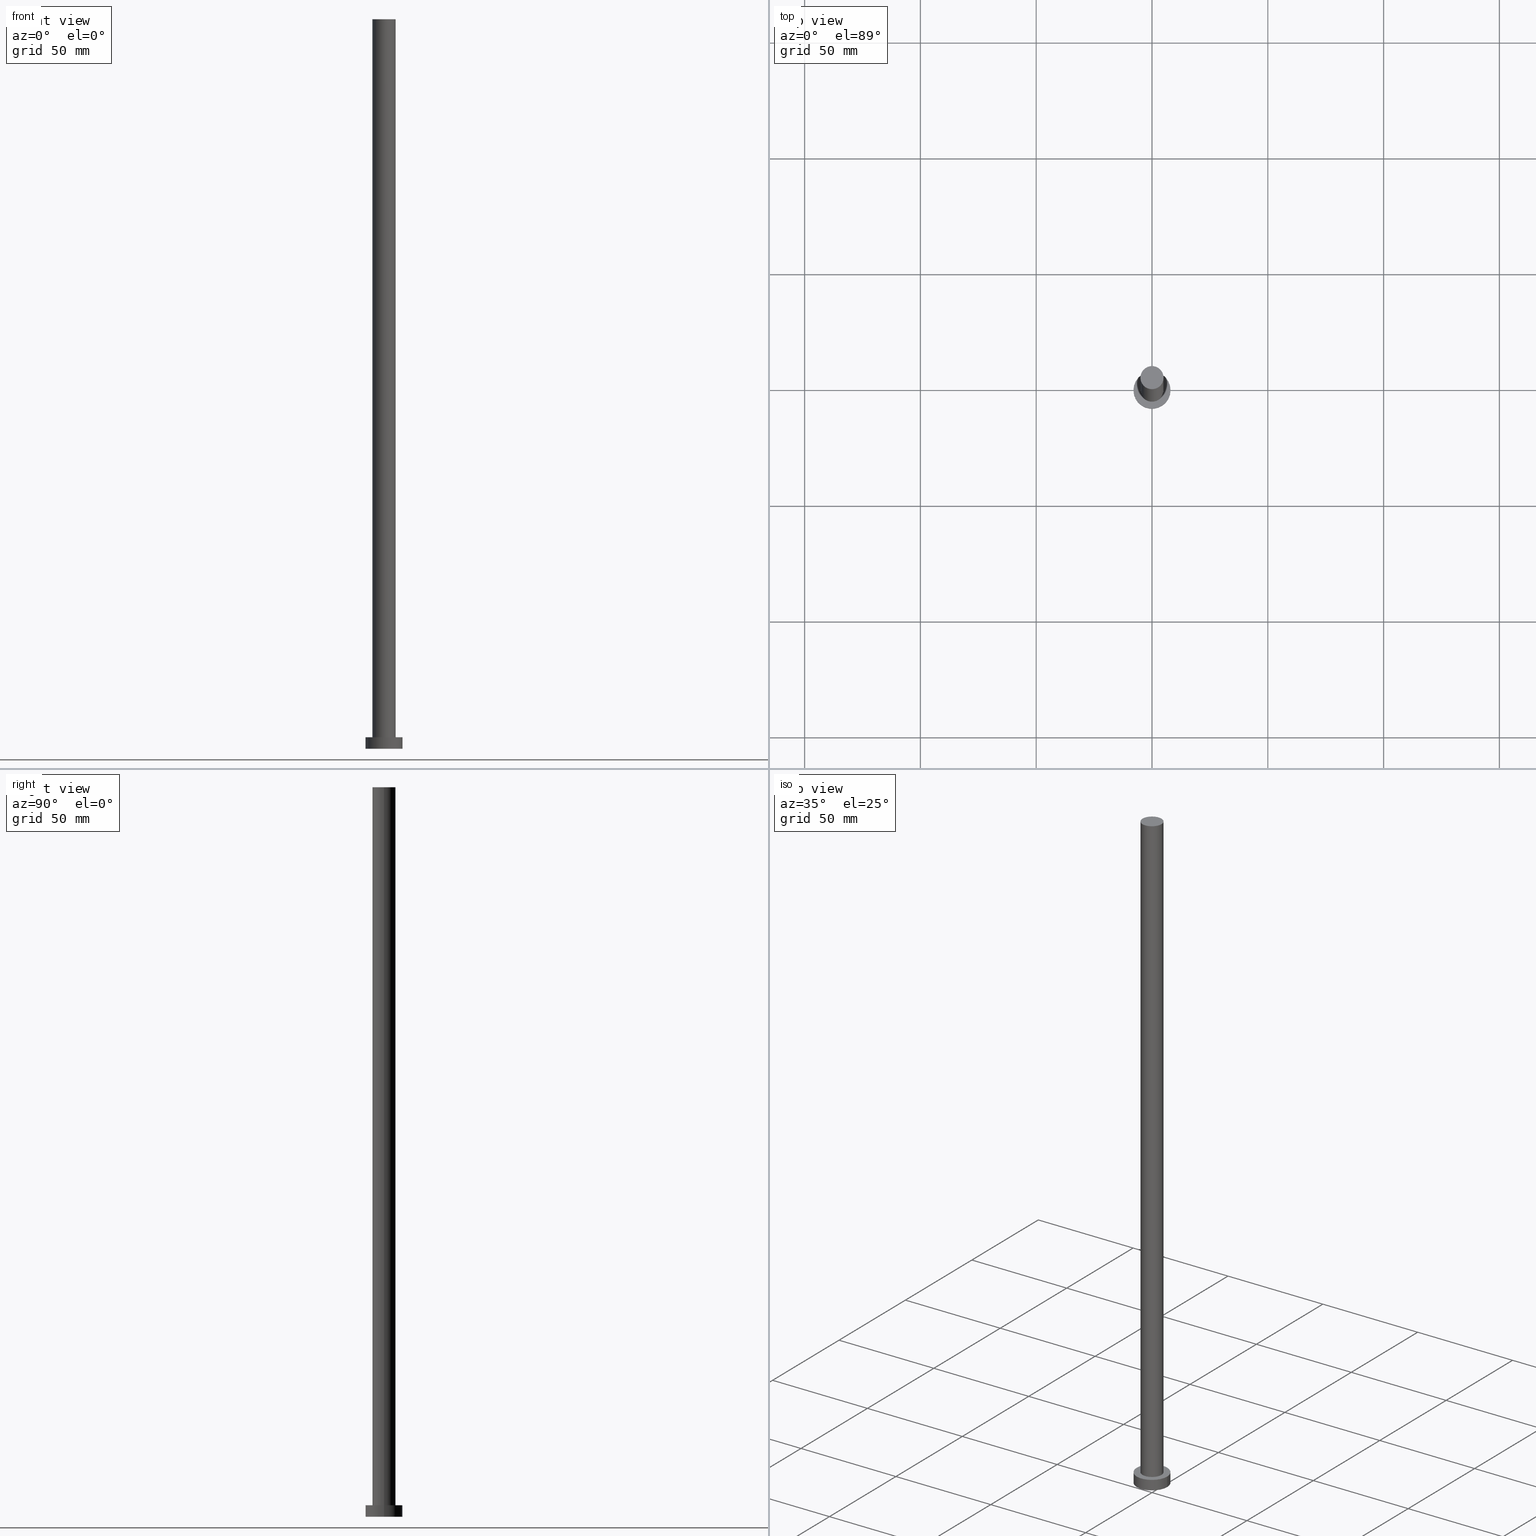
[diagram: canonical four-view strip — front | top / right | iso, engineering-drawing reading convention]
A machine part, canonical four-view strip (front | top / right | iso — engineering-drawing reading convention). The complete STEP part file that produces these views, byte-faithful:
ISO-10303-21;
HEADER;
FILE_DESCRIPTION (( 'STEP AP203' ),
    '1' );
FILE_NAME ('a285.STEP',
    '2023-02-12T11:00:26',
    ( '' ),
    ( '' ),
    'SwSTEP 2.0',
    'SolidWorks 2019',
    '' );
FILE_SCHEMA (( 'CONFIG_CONTROL_DESIGN' ));
ENDSEC;

DATA;
#1 = CARTESIAN_POINT ( 'NONE',  ( 0.000000000000000000, 0.000000000000000000, 5.000000000000000000 ) ) ;
#2 = COORDINATED_UNIVERSAL_TIME_OFFSET ( 1, 0, .AHEAD. ) ;
#3 = DIRECTION ( 'NONE',  ( 0.000000000000000000, 0.000000000000000000, 1.000000000000000000 ) ) ;
#4 = CARTESIAN_POINT ( 'NONE',  ( 0.000000000000000000, 0.000000000000000000, 5.000000000000000000 ) ) ;
#5 = CARTESIAN_POINT ( 'NONE',  ( 0.000000000000000000, 0.000000000000000000, 315.0000000000000000 ) ) ;
#6 = EDGE_LOOP ( 'NONE', ( #90, #85, #34, #241 ) ) ;
#7 = ORIENTED_EDGE ( 'NONE', *, *, #18, .F. ) ;
#8 =( GEOMETRIC_REPRESENTATION_CONTEXT ( 3 ) GLOBAL_UNCERTAINTY_ASSIGNED_CONTEXT ( ( #141 ) ) GLOBAL_UNIT_ASSIGNED_CONTEXT ( ( #164, #214, #109 ) ) REPRESENTATION_CONTEXT ( 'NONE', 'WORKASPACE' ) );
#9 = PLANE ( 'NONE',  #158 ) ;
#10 = PERSON_AND_ORGANIZATION ( #235, #80 ) ;
#11 = AXIS2_PLACEMENT_3D ( 'NONE', #1, #52, #126 ) ;
#12 = PERSON_AND_ORGANIZATION ( #235, #80 ) ;
#13 = PLANE ( 'NONE',  #19 ) ;
#14 = ADVANCED_FACE ( 'NONE', ( #68 ), #142, .T. ) ;
#15 = AXIS2_PLACEMENT_3D ( 'NONE', #228, #59, #21 ) ;
#16 = APPROVAL_STATUS ( 'not_yet_approved' ) ;
#17 = ORIENTED_EDGE ( 'NONE', *, *, #248, .T. ) ;
#18 = EDGE_CURVE ( 'NONE', #28, #198, #67, .T. ) ;
#19 = AXIS2_PLACEMENT_3D ( 'NONE', #138, #222, #177 ) ;
#20 = EDGE_LOOP ( 'NONE', ( #33, #73 ) ) ;
#21 = DIRECTION ( 'NONE',  ( -1.000000000000000000, 0.000000000000000000, 0.000000000000000000 ) ) ;
#22 = CARTESIAN_POINT ( 'NONE',  ( 5.000000000000000000, 6.123233995736766282E-16, 315.0000000000000000 ) ) ;
#23 = EDGE_CURVE ( 'NONE', #174, #198, #212, .T. ) ;
#24 = LOCAL_TIME ( 12, 0, 26.00000000000000000, #2 ) ;
#25 = DIRECTION ( 'NONE',  ( -1.000000000000000000, 0.000000000000000000, 0.000000000000000000 ) ) ;
#26 = APPROVAL_DATE_TIME ( #42, #95 ) ;
#27 = ORIENTED_EDGE ( 'NONE', *, *, #104, .T. ) ;
#28 = VERTEX_POINT ( 'NONE', #50 ) ;
#29 = PERSON_AND_ORGANIZATION_ROLE ( 'creator' ) ;
#30 = LOCAL_TIME ( 12, 0, 26.00000000000000000, #135 ) ;
#31 = EDGE_CURVE ( 'NONE', #174, #46, #189, .T. ) ;
#32 = CARTESIAN_POINT ( 'NONE',  ( -8.000000000000000000, 0.000000000000000000, 5.000000000000000000 ) ) ;
#33 = ORIENTED_EDGE ( 'NONE', *, *, #219, .F. ) ;
#34 = ORIENTED_EDGE ( 'NONE', *, *, #23, .T. ) ;
#35 = VECTOR ( 'NONE', #75, 1000.000000000000000 ) ;
#36 = CARTESIAN_POINT ( 'NONE',  ( 0.000000000000000000, 0.000000000000000000, 315.0000000000000000 ) ) ;
#37 = FACE_OUTER_BOUND ( 'NONE', #121, .T. ) ;
#38 = DIRECTION ( 'NONE',  ( 0.000000000000000000, 0.000000000000000000, 1.000000000000000000 ) ) ;
#39 = VECTOR ( 'NONE', #61, 1000.000000000000000 ) ;
#40 = VERTEX_POINT ( 'NONE', #149 ) ;
#41 = ADVANCED_FACE ( 'NONE', ( #218, #88 ), #13, .T. ) ;
#42 = DATE_AND_TIME ( #209, #30 ) ;
#43 = DIRECTION ( 'NONE',  ( 1.000000000000000000, 0.000000000000000000, -0.000000000000000000 ) ) ;
#44 = AXIS2_PLACEMENT_3D ( 'NONE', #229, #38, #206 ) ;
#45 = APPROVAL ( #16, 'NEUR�EN�' ) ;
#46 = VERTEX_POINT ( 'NONE', #173 ) ;
#47 = DIRECTION ( 'NONE',  ( 1.000000000000000000, 0.000000000000000000, 0.000000000000000000 ) ) ;
#48 = APPROVAL_DATE_TIME ( #127, #58 ) ;
#49 = CC_DESIGN_PERSON_AND_ORGANIZATION_ASSIGNMENT ( #55, #239, ( #230 ) ) ;
#50 = CARTESIAN_POINT ( 'NONE',  ( 8.000000000000000000, 9.797174393178825657E-16, 0.000000000000000000 ) ) ;
#51 = PERSON_AND_ORGANIZATION_ROLE ( 'creator' ) ;
#52 = DIRECTION ( 'NONE',  ( 0.000000000000000000, 0.000000000000000000, 1.000000000000000000 ) ) ;
#53 = CALENDAR_DATE ( 2023, 12, 2 ) ;
#54 = LINE ( 'NONE', #147, #35 ) ;
#55 = PERSON_AND_ORGANIZATION ( #235, #80 ) ;
#56 = ORIENTED_EDGE ( 'NONE', *, *, #23, .F. ) ;
#57 = FACE_OUTER_BOUND ( 'NONE', #159, .T. ) ;
#58 = APPROVAL ( #169, 'NEUR�EN�' ) ;
#59 = DIRECTION ( 'NONE',  ( -0.000000000000000000, -0.000000000000000000, -1.000000000000000000 ) ) ;
#60 = LOCAL_TIME ( 12, 0, 26.00000000000000000, #94 ) ;
#61 = DIRECTION ( 'NONE',  ( -0.000000000000000000, -0.000000000000000000, -1.000000000000000000 ) ) ;
#62 = ORIENTED_EDGE ( 'NONE', *, *, #219, .T. ) ;
#63 = DIRECTION ( 'NONE',  ( 1.000000000000000000, 0.000000000000000000, -0.000000000000000000 ) ) ;
#64 = EDGE_CURVE ( 'NONE', #152, #183, #98, .T. ) ;
#65 = AXIS2_PLACEMENT_3D ( 'NONE', #4, #133, #81 ) ;
#66 = APPROVAL_ROLE ( '' ) ;
#67 = CIRCLE ( 'NONE', #251, 8.000000000000000000 ) ;
#68 = FACE_OUTER_BOUND ( 'NONE', #6, .T. ) ;
#69 = ORIENTED_EDGE ( 'NONE', *, *, #64, .F. ) ;
#70 = PERSON_AND_ORGANIZATION_ROLE ( 'classification_officer' ) ;
#71 = DIRECTION ( 'NONE',  ( -0.000000000000000000, -0.000000000000000000, -1.000000000000000000 ) ) ;
#72 = DATE_TIME_ROLE ( 'classification_date' ) ;
#73 = ORIENTED_EDGE ( 'NONE', *, *, #162, .F. ) ;
#74 = AXIS2_PLACEMENT_3D ( 'NONE', #188, #119, #25 ) ;
#75 = DIRECTION ( 'NONE',  ( -0.000000000000000000, -0.000000000000000000, -1.000000000000000000 ) ) ;
#76 = CARTESIAN_POINT ( 'NONE',  ( 0.000000000000000000, 0.000000000000000000, 0.000000000000000000 ) ) ;
#77 = SECURITY_CLASSIFICATION_LEVEL ( 'unclassified' ) ;
#78 = PERSON_AND_ORGANIZATION ( #235, #80 ) ;
#79 = DATE_AND_TIME ( #120, #185 ) ;
#80 = ORGANIZATION ( 'NEUR�EN�', 'NEUR�EN�', '' ) ;
#81 = DIRECTION ( 'NONE',  ( 1.000000000000000000, 0.000000000000000000, 0.000000000000000000 ) ) ;
#82 = DIRECTION ( 'NONE',  ( 0.000000000000000000, 0.000000000000000000, 1.000000000000000000 ) ) ;
#83 = ORIENTED_EDGE ( 'NONE', *, *, #64, .T. ) ;
#84 = LINE ( 'NONE', #184, #39 ) ;
#85 = ORIENTED_EDGE ( 'NONE', *, *, #31, .F. ) ;
#86 = AXIS2_PLACEMENT_3D ( 'NONE', #93, #3, #179 ) ;
#87 = CARTESIAN_POINT ( 'NONE',  ( 0.000000000000000000, 0.000000000000000000, 0.000000000000000000 ) ) ;
#88 = FACE_OUTER_BOUND ( 'NONE', #172, .T. ) ;
#89 = APPLICATION_PROTOCOL_DEFINITION ( 'international standard', 'config_control_design', 1994, #223 ) ;
#90 = ORIENTED_EDGE ( 'NONE', *, *, #129, .F. ) ;
#91 = AXIS2_PLACEMENT_3D ( 'NONE', #176, #243, #97 ) ;
#92 = PRODUCT ( 'a285', 'a285', '', ( #151 ) ) ;
#93 = CARTESIAN_POINT ( 'NONE',  ( 0.000000000000000000, 0.000000000000000000, 5.000000000000000000 ) ) ;
#94 = COORDINATED_UNIVERSAL_TIME_OFFSET ( 1, 0, .AHEAD. ) ;
#95 = APPROVAL ( #160, 'NEUR�EN�' ) ;
#96 = PERSON_AND_ORGANIZATION ( #235, #80 ) ;
#97 = DIRECTION ( 'NONE',  ( 1.000000000000000000, 0.000000000000000000, 0.000000000000000000 ) ) ;
#98 = CIRCLE ( 'NONE', #240, 5.000000000000000000 ) ;
#99 = ORIENTED_EDGE ( 'NONE', *, *, #215, .F. ) ;
#100 = CC_DESIGN_PERSON_AND_ORGANIZATION_ASSIGNMENT ( #96, #29, ( #230 ) ) ;
#101 = ORIENTED_EDGE ( 'NONE', *, *, #137, .T. ) ;
#102 = DIRECTION ( 'NONE',  ( 0.000000000000000000, 0.000000000000000000, 1.000000000000000000 ) ) ;
#103 = PERSON_AND_ORGANIZATION_ROLE ( 'design_owner' ) ;
#104 = EDGE_CURVE ( 'NONE', #183, #152, #118, .T. ) ;
#105 = VECTOR ( 'NONE', #71, 1000.000000000000000 ) ;
#106 = MANIFOLD_SOLID_BREP ( 'P�idat vysunut�m3', #134 ) ;
#107 = APPROVAL_PERSON_ORGANIZATION ( #143, #58, #237 ) ;
#108 = APPROVAL_DATE_TIME ( #79, #45 ) ;
#109 =( NAMED_UNIT ( * ) SI_UNIT ( $, .STERADIAN. ) SOLID_ANGLE_UNIT ( ) );
#110 = AXIS2_PLACEMENT_3D ( 'NONE', #204, #231, #43 ) ;
#111 = VERTEX_POINT ( 'NONE', #225 ) ;
#112 = DIRECTION ( 'NONE',  ( -0.000000000000000000, -0.000000000000000000, -1.000000000000000000 ) ) ;
#113 = CARTESIAN_POINT ( 'NONE',  ( 0.000000000000000000, 0.000000000000000000, 315.0000000000000000 ) ) ;
#114 = ORIENTED_EDGE ( 'NONE', *, *, #248, .F. ) ;
#115 = CIRCLE ( 'NONE', #166, 8.000000000000000000 ) ;
#116 = FACE_OUTER_BOUND ( 'NONE', #246, .T. ) ;
#117 = DIRECTION ( 'NONE',  ( 0.000000000000000000, 0.000000000000000000, 1.000000000000000000 ) ) ;
#118 = CIRCLE ( 'NONE', #233, 5.000000000000000000 ) ;
#119 = DIRECTION ( 'NONE',  ( -0.000000000000000000, -0.000000000000000000, -1.000000000000000000 ) ) ;
#120 = CALENDAR_DATE ( 2023, 12, 2 ) ;
#121 = EDGE_LOOP ( 'NONE', ( #99, #7 ) ) ;
#122 = COORDINATED_UNIVERSAL_TIME_OFFSET ( 1, 0, .AHEAD. ) ;
#123 = ORIENTED_EDGE ( 'NONE', *, *, #104, .F. ) ;
#124 = PRODUCT_RELATED_PRODUCT_CATEGORY ( 'detail', '', ( #92 ) ) ;
#125 = DATE_AND_TIME ( #171, #24 ) ;
#126 = DIRECTION ( 'NONE',  ( 1.000000000000000000, 0.000000000000000000, 0.000000000000000000 ) ) ;
#127 = DATE_AND_TIME ( #53, #60 ) ;
#128 = ORIENTED_EDGE ( 'NONE', *, *, #18, .T. ) ;
#129 = EDGE_CURVE ( 'NONE', #46, #28, #148, .T. ) ;
#130 = DIRECTION ( 'NONE',  ( 1.000000000000000000, 0.000000000000000000, 0.000000000000000000 ) ) ;
#131 = ORIENTED_EDGE ( 'NONE', *, *, #157, .T. ) ;
#132 = CC_DESIGN_APPROVAL ( #95, ( #201 ) ) ;
#133 = DIRECTION ( 'NONE',  ( 0.000000000000000000, 0.000000000000000000, 1.000000000000000000 ) ) ;
#134 = CLOSED_SHELL ( 'NONE', ( #232, #253, #14, #41, #250, #181, #146 ) ) ;
#135 = COORDINATED_UNIVERSAL_TIME_OFFSET ( 1, 0, .AHEAD. ) ;
#136 = CARTESIAN_POINT ( 'NONE',  ( 0.000000000000000000, 0.000000000000000000, 5.000000000000000000 ) ) ;
#137 = EDGE_CURVE ( 'NONE', #46, #174, #115, .T. ) ;
#138 = CARTESIAN_POINT ( 'NONE',  ( 0.000000000000000000, 0.000000000000000000, 5.000000000000000000 ) ) ;
#139 = CYLINDRICAL_SURFACE ( 'NONE', #74, 8.000000000000000000 ) ;
#140 = APPROVAL_PERSON_ORGANIZATION ( #78, #45, #192 ) ;
#141 = UNCERTAINTY_MEASURE_WITH_UNIT (LENGTH_MEASURE( 1.000000000000000082E-05 ), #164, 'distance_accuracy_value', 'NONE');
#142 = CYLINDRICAL_SURFACE ( 'NONE', #205, 8.000000000000000000 ) ;
#143 = PERSON_AND_ORGANIZATION ( #235, #80 ) ;
#144 = ORIENTED_EDGE ( 'NONE', *, *, #137, .F. ) ;
#145 = CIRCLE ( 'NONE', #65, 5.000000000000000000 ) ;
#146 = ADVANCED_FACE ( 'NONE', ( #116 ), #207, .T. ) ;
#147 = CARTESIAN_POINT ( 'NONE',  ( 5.000000000000000000, 6.123233995736766282E-16, 315.0000000000000000 ) ) ;
#148 = LINE ( 'NONE', #249, #175 ) ;
#149 = CARTESIAN_POINT ( 'NONE',  ( 5.000000000000000000, 6.123233995736766282E-16, 5.000000000000000000 ) ) ;
#150 = CIRCLE ( 'NONE', #86, 5.000000000000000000 ) ;
#151 = MECHANICAL_CONTEXT ( 'NONE', #197, 'mechanical' ) ;
#152 = VERTEX_POINT ( 'NONE', #22 ) ;
#153 = FACE_OUTER_BOUND ( 'NONE', #178, .T. ) ;
#154 = DIRECTION ( 'NONE',  ( 1.000000000000000000, 0.000000000000000000, 0.000000000000000000 ) ) ;
#155 = CARTESIAN_POINT ( 'NONE',  ( -8.000000000000000000, 0.000000000000000000, 0.000000000000000000 ) ) ;
#156 = ORIENTED_EDGE ( 'NONE', *, *, #162, .T. ) ;
#157 = EDGE_CURVE ( 'NONE', #152, #40, #54, .T. ) ;
#158 = AXIS2_PLACEMENT_3D ( 'NONE', #87, #247, #63 ) ;
#159 = EDGE_LOOP ( 'NONE', ( #69, #131, #156, #114 ) ) ;
#160 = APPROVAL_STATUS ( 'not_yet_approved' ) ;
#161 = ORIENTED_EDGE ( 'NONE', *, *, #157, .F. ) ;
#162 = EDGE_CURVE ( 'NONE', #40, #111, #150, .T. ) ;
#163 = CIRCLE ( 'NONE', #91, 8.000000000000000000 ) ;
#164 =( LENGTH_UNIT ( ) NAMED_UNIT ( * ) SI_UNIT ( .MILLI., .METRE. ) );
#165 = ORIENTED_EDGE ( 'NONE', *, *, #31, .T. ) ;
#166 = AXIS2_PLACEMENT_3D ( 'NONE', #136, #117, #245 ) ;
#167 = DIRECTION ( 'NONE',  ( 0.000000000000000000, 0.000000000000000000, 1.000000000000000000 ) ) ;
#168 = PERSON_AND_ORGANIZATION ( #235, #80 ) ;
#169 = APPROVAL_STATUS ( 'not_yet_approved' ) ;
#170 = CC_DESIGN_APPROVAL ( #45, ( #230 ) ) ;
#171 = CALENDAR_DATE ( 2023, 12, 2 ) ;
#172 = EDGE_LOOP ( 'NONE', ( #165, #101 ) ) ;
#173 = CARTESIAN_POINT ( 'NONE',  ( 8.000000000000000000, 9.797174393178825657E-16, 5.000000000000000000 ) ) ;
#174 = VERTEX_POINT ( 'NONE', #32 ) ;
#175 = VECTOR ( 'NONE', #190, 1000.000000000000000 ) ;
#176 = CARTESIAN_POINT ( 'NONE',  ( 0.000000000000000000, 0.000000000000000000, 0.000000000000000000 ) ) ;
#177 = DIRECTION ( 'NONE',  ( 1.000000000000000000, 0.000000000000000000, -0.000000000000000000 ) ) ;
#178 = EDGE_LOOP ( 'NONE', ( #161, #123, #17, #62 ) ) ;
#179 = DIRECTION ( 'NONE',  ( 1.000000000000000000, 0.000000000000000000, 0.000000000000000000 ) ) ;
#180 = ORIENTED_EDGE ( 'NONE', *, *, #129, .T. ) ;
#181 = ADVANCED_FACE ( 'NONE', ( #153 ), #244, .T. ) ;
#182 = DIRECTION ( 'NONE',  ( -1.000000000000000000, 0.000000000000000000, 0.000000000000000000 ) ) ;
#183 = VERTEX_POINT ( 'NONE', #199 ) ;
#184 = CARTESIAN_POINT ( 'NONE',  ( -5.000000000000000000, 0.000000000000000000, 315.0000000000000000 ) ) ;
#185 = LOCAL_TIME ( 12, 0, 26.00000000000000000, #217 ) ;
#186 = ADVANCED_BREP_SHAPE_REPRESENTATION ( 'a285', ( #106, #44 ), #8 ) ;
#187 = CC_DESIGN_DATE_AND_TIME_ASSIGNMENT ( #125, #196, ( #201 ) ) ;
#188 = CARTESIAN_POINT ( 'NONE',  ( 0.000000000000000000, 0.000000000000000000, 5.000000000000000000 ) ) ;
#189 = CIRCLE ( 'NONE', #11, 8.000000000000000000 ) ;
#190 = DIRECTION ( 'NONE',  ( -0.000000000000000000, -0.000000000000000000, -1.000000000000000000 ) ) ;
#191 = DIRECTION ( 'NONE',  ( -1.000000000000000000, 0.000000000000000000, 0.000000000000000000 ) ) ;
#192 = APPROVAL_ROLE ( '' ) ;
#193 = CC_DESIGN_PERSON_AND_ORGANIZATION_ASSIGNMENT ( #195, #51, ( #201 ) ) ;
#194 = APPROVAL_PERSON_ORGANIZATION ( #10, #95, #66 ) ;
#195 = PERSON_AND_ORGANIZATION ( #235, #80 ) ;
#196 = DATE_TIME_ROLE ( 'creation_date' ) ;
#197 = APPLICATION_CONTEXT ( 'configuration controlled 3d designs of mechanical parts and assemblies' ) ;
#198 = VERTEX_POINT ( 'NONE', #155 ) ;
#199 = CARTESIAN_POINT ( 'NONE',  ( -5.000000000000000000, 0.000000000000000000, 315.0000000000000000 ) ) ;
#200 = AXIS2_PLACEMENT_3D ( 'NONE', #36, #112, #182 ) ;
#201 = PRODUCT_DEFINITION ( 'NEZN�M�', '', #230, #252 ) ;
#202 = EDGE_LOOP ( 'NONE', ( #144, #180, #128, #56 ) ) ;
#203 = CYLINDRICAL_SURFACE ( 'NONE', #15, 5.000000000000000000 ) ;
#204 = CARTESIAN_POINT ( 'NONE',  ( 0.000000000000000000, 0.000000000000000000, 315.0000000000000000 ) ) ;
#205 = AXIS2_PLACEMENT_3D ( 'NONE', #234, #211, #191 ) ;
#206 = DIRECTION ( 'NONE',  ( 1.000000000000000000, 0.000000000000000000, 0.000000000000000000 ) ) ;
#207 = PLANE ( 'NONE',  #110 ) ;
#208 = CC_DESIGN_DATE_AND_TIME_ASSIGNMENT ( #255, #72, ( #226 ) ) ;
#209 = CALENDAR_DATE ( 2023, 12, 2 ) ;
#210 = CC_DESIGN_SECURITY_CLASSIFICATION ( #226, ( #230 ) ) ;
#211 = DIRECTION ( 'NONE',  ( -0.000000000000000000, -0.000000000000000000, -1.000000000000000000 ) ) ;
#212 = LINE ( 'NONE', #254, #105 ) ;
#213 = CALENDAR_DATE ( 2023, 12, 2 ) ;
#214 =( NAMED_UNIT ( * ) PLANE_ANGLE_UNIT ( ) SI_UNIT ( $, .RADIAN. ) );
#215 = EDGE_CURVE ( 'NONE', #198, #28, #163, .T. ) ;
#216 = SHAPE_DEFINITION_REPRESENTATION ( #224, #186 ) ;
#217 = COORDINATED_UNIVERSAL_TIME_OFFSET ( 1, 0, .AHEAD. ) ;
#218 = FACE_BOUND ( 'NONE', #20, .T. ) ;
#219 = EDGE_CURVE ( 'NONE', #111, #40, #145, .T. ) ;
#220 = CC_DESIGN_APPROVAL ( #58, ( #226 ) ) ;
#221 = FACE_OUTER_BOUND ( 'NONE', #202, .T. ) ;
#222 = DIRECTION ( 'NONE',  ( 0.000000000000000000, 0.000000000000000000, 1.000000000000000000 ) ) ;
#223 = APPLICATION_CONTEXT ( 'configuration controlled 3d designs of mechanical parts and assemblies' ) ;
#224 = PRODUCT_DEFINITION_SHAPE ( 'NONE', 'NONE',  #201 ) ;
#225 = CARTESIAN_POINT ( 'NONE',  ( -5.000000000000000000, 0.000000000000000000, 5.000000000000000000 ) ) ;
#226 = SECURITY_CLASSIFICATION ( '', '', #77 ) ;
#227 = APPLICATION_PROTOCOL_DEFINITION ( 'international standard', 'config_control_design', 1994, #197 ) ;
#228 = CARTESIAN_POINT ( 'NONE',  ( 0.000000000000000000, 0.000000000000000000, 315.0000000000000000 ) ) ;
#229 = CARTESIAN_POINT ( 'NONE',  ( 0.000000000000000000, 0.000000000000000000, 0.000000000000000000 ) ) ;
#230 = PRODUCT_DEFINITION_FORMATION_WITH_SPECIFIED_SOURCE ( 'LIBOVOLN�', '', #92, .NOT_KNOWN. ) ;
#231 = DIRECTION ( 'NONE',  ( 0.000000000000000000, 0.000000000000000000, 1.000000000000000000 ) ) ;
#232 = ADVANCED_FACE ( 'NONE', ( #57 ), #203, .T. ) ;
#233 = AXIS2_PLACEMENT_3D ( 'NONE', #113, #102, #130 ) ;
#234 = CARTESIAN_POINT ( 'NONE',  ( 0.000000000000000000, 0.000000000000000000, 5.000000000000000000 ) ) ;
#235 = PERSON ( 'NEUR�EN�', 'NEUR�EN�', 'NEUR�EN�', ('NEUR�EN�'), ('NEUR�EN�'), ('NEUR�EN�') ) ;
#236 = LOCAL_TIME ( 12, 0, 26.00000000000000000, #122 ) ;
#237 = APPROVAL_ROLE ( '' ) ;
#238 = CC_DESIGN_PERSON_AND_ORGANIZATION_ASSIGNMENT ( #168, #70, ( #226 ) ) ;
#239 = PERSON_AND_ORGANIZATION_ROLE ( 'design_supplier' ) ;
#240 = AXIS2_PLACEMENT_3D ( 'NONE', #5, #82, #154 ) ;
#241 = ORIENTED_EDGE ( 'NONE', *, *, #215, .T. ) ;
#242 = CC_DESIGN_PERSON_AND_ORGANIZATION_ASSIGNMENT ( #12, #103, ( #92 ) ) ;
#243 = DIRECTION ( 'NONE',  ( 0.000000000000000000, 0.000000000000000000, 1.000000000000000000 ) ) ;
#244 = CYLINDRICAL_SURFACE ( 'NONE', #200, 5.000000000000000000 ) ;
#245 = DIRECTION ( 'NONE',  ( 1.000000000000000000, 0.000000000000000000, 0.000000000000000000 ) ) ;
#246 = EDGE_LOOP ( 'NONE', ( #27, #83 ) ) ;
#247 = DIRECTION ( 'NONE',  ( 0.000000000000000000, 0.000000000000000000, 1.000000000000000000 ) ) ;
#248 = EDGE_CURVE ( 'NONE', #183, #111, #84, .T. ) ;
#249 = CARTESIAN_POINT ( 'NONE',  ( 8.000000000000000000, 9.797174393178825657E-16, 5.000000000000000000 ) ) ;
#250 = ADVANCED_FACE ( 'NONE', ( #37 ), #9, .F. ) ;
#251 = AXIS2_PLACEMENT_3D ( 'NONE', #76, #167, #47 ) ;
#252 = DESIGN_CONTEXT ( 'detailed design', #223, 'design' ) ;
#253 = ADVANCED_FACE ( 'NONE', ( #221 ), #139, .T. ) ;
#254 = CARTESIAN_POINT ( 'NONE',  ( -8.000000000000000000, 0.000000000000000000, 5.000000000000000000 ) ) ;
#255 = DATE_AND_TIME ( #213, #236 ) ;
ENDSEC;
END-ISO-10303-21;
